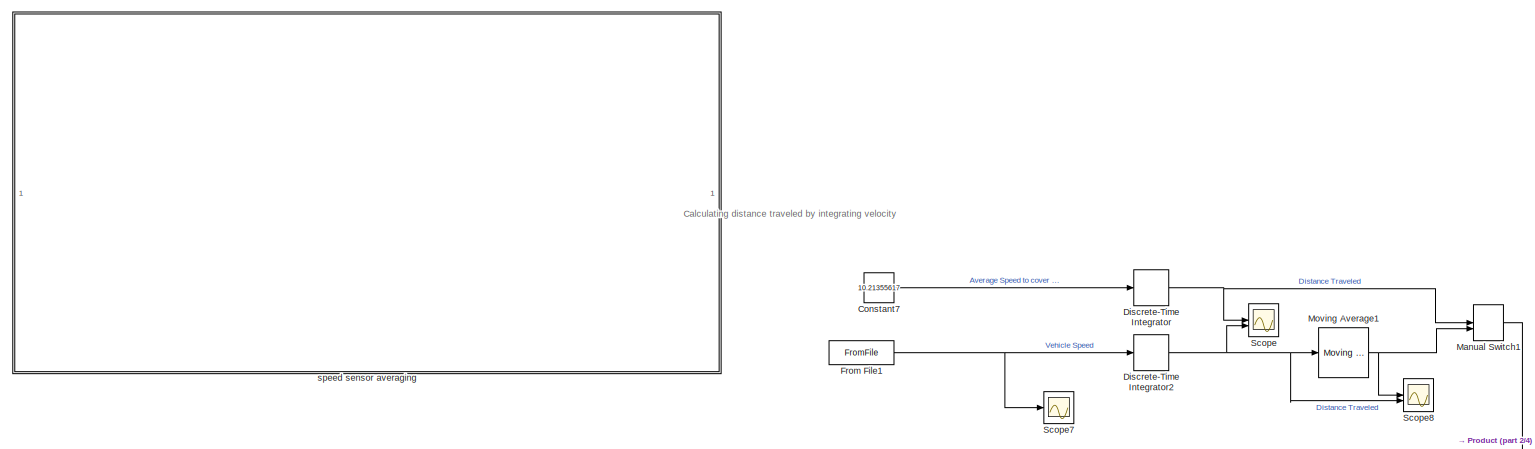
[diagram: root canvas - part 1/4, top center region]
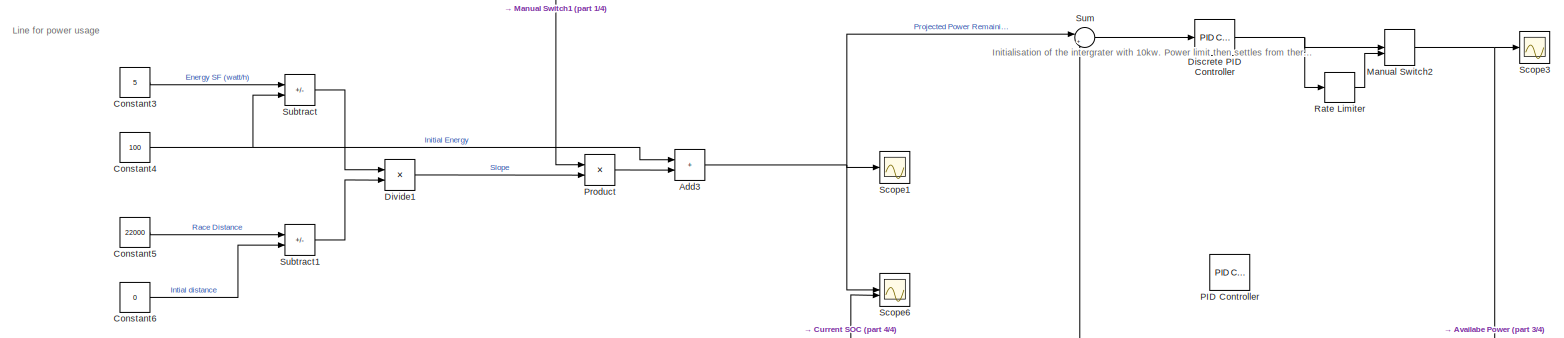
[diagram: root canvas - part 2/4, middle right region]
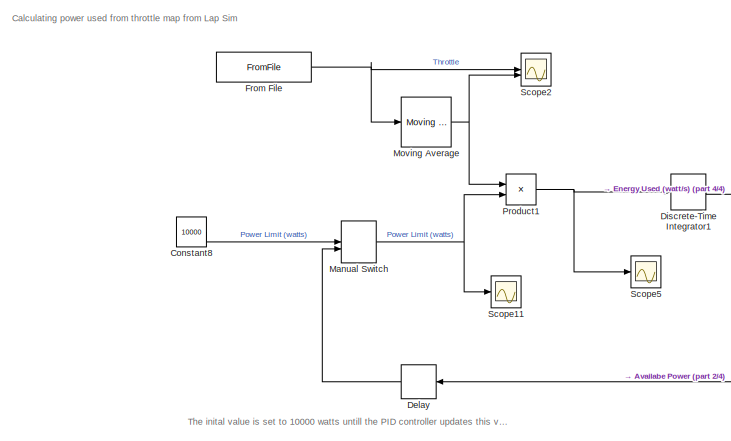
[diagram: root canvas - part 3/4, bottom left region]
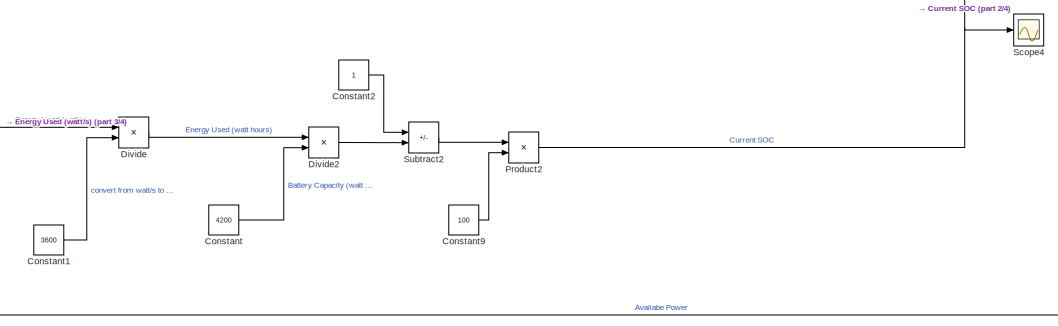
[diagram: root canvas - part 4/4, bottom center region]
MODEL slx_b58f4a45e1f0
KIND model
CONFIG AbsTol = auto
CONFIG EnableMultiTasking = off
CONFIG FixedStep = auto
CONFIG MaxStep = auto
CONFIG MinStep = auto
CONFIG RelTol = 1e-3
CONFIG SampleTimeConstraint = Unconstrained
CONFIG SolverName = VariableStepAuto
CONFIG StartTime = 0.0
CONFIG StopTime = 2154
BLOCK [Sum] Add3
  IconShape = rectangular
BLOCK [Constant] Constant
  Value = 4200
BLOCK [Constant] Constant1
  Value = 3600
BLOCK [Constant] Constant2
BLOCK [Constant] Constant3
  Value = 5
BLOCK [Constant] Constant4
  Value = 100
BLOCK [Constant] Constant5
  Value = 22000
BLOCK [Constant] Constant6
  Value = 0
BLOCK [Constant] Constant7
  Value = 10.21355617
BLOCK [Constant] Constant8
  Value = 10000
BLOCK [Constant] Constant9
  Value = 100
BLOCK [Delay] Delay
  DelayLength = 1
  InitialCondition = 10000
  InputPortMap = u0
BLOCK [Reference] Discrete PID Controller  REF=slpidlib/PID Controller
  LibrarySourceBlock = simulink/Discrete/Discrete PID Controller
  SourceBlock = slpidlib/PID Controller
  SourceType = PID 1dof
BLOCK [DiscreteIntegrator] Discrete-Time Integrator
  ICPrevOutput = DiscIntNeverNeededParam
  ICPrevScaledInput = DiscIntNeverNeededParam
  InitialConditionSetting = Auto
  SampleTime = 0.01
BLOCK [DiscreteIntegrator] Discrete-Time Integrator1
  ICPrevOutput = DiscIntNeverNeededParam
  ICPrevScaledInput = DiscIntNeverNeededParam
  InitialConditionSetting = Auto
  SampleTime = 0.01
BLOCK [DiscreteIntegrator] Discrete-Time Integrator2
  ICPrevOutput = DiscIntNeverNeededParam
  ICPrevScaledInput = DiscIntNeverNeededParam
  InitialConditionSetting = Auto
  SampleTime = 0.01
BLOCK [Product] Divide
  Inputs = */
BLOCK [Product] Divide1
  Inputs = */
BLOCK [Product] Divide2
  Inputs = */
BLOCK [FromFile] From File
  FileName = endurancedata.mat
  SampleTime = 0.01
BLOCK [FromFile] From File1
  FileName = simspeed.mat
  SampleTime = 0.01
BLOCK [ManualSwitch] Manual Switch
  CurrentSetting = 0
BLOCK [ManualSwitch] Manual Switch1
  CurrentSetting = 0
BLOCK [ManualSwitch] Manual Switch2
BLOCK [Reference] Moving Average  REF=dspstat3/Moving
Average
  SourceBlock = dspstat3/Moving\nAverage
  SourceType = dsp.simulink.MovingAverage
BLOCK [Reference] Moving Average1  REF=dspstat3/Moving
Average
  SourceBlock = dspstat3/Moving\nAverage
  SourceType = dsp.simulink.MovingAverage
BLOCK [Reference] PID Controller  REF=slpidlib/PID Controller
  LibrarySourceBlock = simulink/Continuous/PID Controller
  SourceBlock = slpidlib/PID Controller
  SourceType = PID 1dof
BLOCK [Product] Product
BLOCK [Product] Product1
BLOCK [Product] Product2
BLOCK [RateLimiter] Rate Limiter
  FallingSlewLimit = -10
  RisingSlewLimit = 10
  SampleTimeMode = inherited
BLOCK [Scope] Scope
  Floating = off
  NumInputPorts = 2
  ScopeSpecificationString = Simulink.scopes.TimeScopeBlockCfg('CurrentConfiguration', extmgr.ConfigurationSet(extmgr.Configuration('Core','General UI',true),extmgr.Configuration('Core','Source UI',true),extmgr.Configuration('Sources','WiredSimulink',true),extmgr.Configuration('Visuals','Time Domain',true,'SerializedDisplays',{struct('MinYLimReal','-2750.00000','MaxYLimReal','24749.99999','YLabelReal','','MinYLimMag','  0.000...<+2063ch>
BLOCK [Scope] Scope1
  Floating = off
  NumInputPorts = 1
  ScopeSpecificationString = Simulink.scopes.TimeScopeBlockCfg('CurrentConfiguration', extmgr.ConfigurationSet(extmgr.Configuration('Core','General UI',true),extmgr.Configuration('Core','Source UI',true),extmgr.Configuration('Sources','WiredSimulink',true,'DataLoggingVariableName','ScopeData1'),extmgr.Configuration('Visuals','Time Domain',true,'SerializedDisplays',{struct('MinYLimReal','-6.6807','MaxYLimReal','111.85341','YLa...<+1504ch>
BLOCK [Scope] Scope11
  Floating = off
  NumInputPorts = 1
  ScopeSpecificationString = Simulink.scopes.TimeScopeBlockCfg('CurrentConfiguration', extmgr.ConfigurationSet(extmgr.Configuration('Core','General UI',true),extmgr.Configuration('Core','Source UI',true),extmgr.Configuration('Sources','WiredSimulink',true,'DataLoggingVariableName','ScopeData1'),extmgr.Configuration('Visuals','Time Domain',true,'SerializedDisplays',{struct('MinYLimReal','-1373.6153','MaxYLimReal','12359.40527'...<+1535ch>
BLOCK [Scope] Scope2
  Floating = off
  NumInputPorts = 2
  ScopeSpecificationString = Simulink.scopes.TimeScopeBlockCfg('CurrentConfiguration', extmgr.ConfigurationSet(extmgr.Configuration('Core','General UI',true),extmgr.Configuration('Core','Source UI',true),extmgr.Configuration('Sources','WiredSimulink',true,'DataLoggingVariableName','ScopeData2'),extmgr.Configuration('Visuals','Time Domain',true,'SerializedDisplays',{struct('MinYLimReal','0.99117','MaxYLimReal','1.00417','YLabe...<+1515ch>
BLOCK [Scope] Scope3
  Floating = off
  NumInputPorts = 1
  ScopeSpecificationString = Simulink.scopes.TimeScopeBlockCfg('CurrentConfiguration', extmgr.ConfigurationSet(extmgr.Configuration('Core','General UI',true),extmgr.Configuration('Core','Source UI',true),extmgr.Configuration('Sources','WiredSimulink',true,'DataLoggingVariableName','ScopeData3'),extmgr.Configuration('Visuals','Time Domain',true,'SerializedDisplays',{struct('MinYLimReal','9398.53665','MaxYLimReal','10180.70743'...<+1511ch>
BLOCK [Scope] Scope4
  Floating = off
  NumInputPorts = 1
  ScopeSpecificationString = Simulink.scopes.TimeScopeBlockCfg('CurrentConfiguration', extmgr.ConfigurationSet(extmgr.Configuration('Core','General UI',true),extmgr.Configuration('Core','Source UI',true),extmgr.Configuration('Sources','WiredSimulink',true,'DataLoggingVariableName','ScopeData4'),extmgr.Configuration('Visuals','Time Domain',true,'SerializedDisplays',{struct('MinYLimReal','-8.33149','MaxYLimReal','112.03683','YL...<+1467ch>
BLOCK [Scope] Scope5
  Floating = off
  NumInputPorts = 1
  ScopeSpecificationString = Simulink.scopes.TimeScopeBlockCfg('CurrentConfiguration', extmgr.ConfigurationSet(extmgr.Configuration('Core','General UI',true),extmgr.Configuration('Core','Source UI',true),extmgr.Configuration('Sources','WiredSimulink',true,'DataLoggingVariableName','ScopeData5'),extmgr.Configuration('Visuals','Time Domain',true,'SerializedDisplays',{struct('MinYLimReal','7999.98222','MaxYLimReal','8000.01146',...<+1497ch>
BLOCK [Scope] Scope6
  Floating = off
  NumInputPorts = 2
  ScopeSpecificationString = Simulink.scopes.TimeScopeBlockCfg('CurrentConfiguration', extmgr.ConfigurationSet(extmgr.Configuration('Core','General UI',true),extmgr.Configuration('Core','Source UI',true),extmgr.Configuration('Sources','WiredSimulink',true,'DataLoggingVariableName','ScopeData6'),extmgr.Configuration('Visuals','Time Domain',true,'SerializedDisplays',{struct('MinYLimReal','-12.05319','MaxYLimReal','112.45035','Y...<+1539ch>
BLOCK [Scope] Scope7
  Floating = off
  NumInputPorts = 1
  ScopeSpecificationString = Simulink.scopes.TimeScopeBlockCfg('CurrentConfiguration', extmgr.ConfigurationSet(extmgr.Configuration('Core','General UI',true),extmgr.Configuration('Core','Source UI',true),extmgr.Configuration('Sources','WiredSimulink',true,'DataLoggingVariableName','ScopeData1'),extmgr.Configuration('Visuals','Time Domain',true,'SerializedDisplays',{struct('MinYLimReal','-0.76263','MaxYLimReal','28.39208','YLa...<+1465ch>
BLOCK [Scope] Scope8
  Floating = off
  NumInputPorts = 2
  ScopeSpecificationString = Simulink.scopes.TimeScopeBlockCfg('CurrentConfiguration', extmgr.ConfigurationSet(extmgr.Configuration('Core','General UI',true),extmgr.Configuration('Core','Source UI',true),extmgr.Configuration('Sources','WiredSimulink',true,'DataLoggingVariableName','ScopeData1'),extmgr.Configuration('Visuals','Time Domain',true,'SerializedDisplays',{struct('MinYLimReal','-2749.93368','MaxYLimReal','24749.40311...<+1553ch>
BLOCK [Sum] Subtract
  IconShape = rectangular
  Inputs = +-
BLOCK [Sum] Subtract1
  IconShape = rectangular
  Inputs = +-
BLOCK [Sum] Subtract2
  IconShape = rectangular
  Inputs = +-
BLOCK [Sum] Sum
  Inputs = |+-
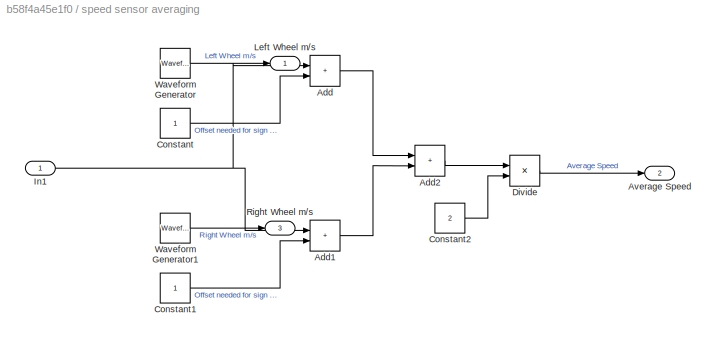
BLOCK [SubSystem] speed sensor averaging
  Commented = on
BLOCK [Sum] speed sensor averaging/Add
  IconShape = rectangular
BLOCK [Sum] speed sensor averaging/Add1
  IconShape = rectangular
BLOCK [Sum] speed sensor averaging/Add2
  IconShape = rectangular
BLOCK [Outport] speed sensor averaging/Average Speed
  Port = 2
BLOCK [Constant] speed sensor averaging/Constant
BLOCK [Constant] speed sensor averaging/Constant1
BLOCK [Constant] speed sensor averaging/Constant2
  Value = 2
BLOCK [Product] speed sensor averaging/Divide
  Inputs = */
BLOCK [Inport] speed sensor averaging/In1
BLOCK [Outport] speed sensor averaging/Left Wheel m//s
BLOCK [Outport] speed sensor averaging/Right Wheel m//s
  Port = 3
BLOCK [Reference] speed sensor averaging/Waveform Generator  REF=simulink/Sources/Waveform
Generator
  SourceBlock = simulink/Sources/Waveform\nGenerator
  SourceType = WaveformGenerator
BLOCK [Reference] speed sensor averaging/Waveform Generator1  REF=simulink/Sources/Waveform
Generator
  SourceBlock = simulink/Sources/Waveform\nGenerator
  SourceType = WaveformGenerator
ANNOTATION (root): Calculating distance traveled by integrating velocity
ANNOTATION (root): Calculating power used from throttle map from Lap Sim
ANNOTATION (root): Initialisation of the intergrater with 10kw. Power limit then settles from there.
ANNOTATION (root): Line for power usage
ANNOTATION (root): The inital value is set to 10000 watts untill the PID controller updates this value
NET Add3:1 -> Scope1:1, Scope6:1, Sum:1
LINE Constant1:1 -> Divide:2
LINE Constant2:1 -> Subtract2:1
LINE Constant3:1 -> Subtract:1
NET Constant4:1 -> Add3:1, Subtract:2
LINE Constant5:1 -> Subtract1:1
LINE Constant6:1 -> Subtract1:2
LINE Constant7:1 -> Discrete-Time Integrator:1
LINE Constant8:1 -> Manual Switch:1
LINE Constant9:1 -> Product2:2
LINE Constant:1 -> Divide2:2
LINE Delay:1 -> Manual Switch:2
NET Discrete PID Controller:1 -> Manual Switch2:1, Rate Limiter:1
LINE Discrete-Time Integrator1:1 -> Divide:1
NET Discrete-Time Integrator2:1 -> Moving Average1:1, Scope8:2, Scope:2
NET Discrete-Time Integrator:1 -> Manual Switch1:1, Scope:1
LINE Divide1:1 -> Product:2
LINE Divide2:1 -> Subtract2:2
LINE Divide:1 -> Divide2:1
NET From File1:1 -> Discrete-Time Integrator2:1, Scope7:1
NET From File:1 -> Moving Average:1, Scope2:1
LINE Manual Switch1:1 -> Product:1
NET Manual Switch2:1 -> Delay:1, Scope3:1
NET Manual Switch:1 -> Product1:2, Scope11:1
NET Moving Average1:1 -> Manual Switch1:2, Scope8:1
NET Moving Average:1 -> Product1:1, Scope2:2
NET Product1:1 -> Discrete-Time Integrator1:1, Scope5:1
NET Product2:1 -> Scope4:1, Scope6:2, Sum:2
LINE Product:1 -> Add3:2
LINE Rate Limiter:1 -> Manual Switch2:2
LINE Subtract1:1 -> Divide1:2
LINE Subtract2:1 -> Product2:1
LINE Subtract:1 -> Divide1:1
LINE Sum:1 -> Discrete PID Controller:1
LINE speed sensor averaging/Add1:1 -> speed sensor averaging/Add2:2
LINE speed sensor averaging/Add2:1 -> speed sensor averaging/Divide:1
LINE speed sensor averaging/Add:1 -> speed sensor averaging/Add2:1
LINE speed sensor averaging/Constant1:1 -> speed sensor averaging/Add1:2
LINE speed sensor averaging/Constant2:1 -> speed sensor averaging/Divide:2
LINE speed sensor averaging/Constant:1 -> speed sensor averaging/Add:2
LINE speed sensor averaging/Divide:1 -> speed sensor averaging/Average Speed:1
NET speed sensor averaging/In1:1 -> speed sensor averaging/Add1:1, speed sensor averaging/Add:1
LINE speed sensor averaging/Waveform Generator1:1 -> speed sensor averaging/Right Wheel m//s:1
LINE speed sensor averaging/Waveform Generator:1 -> speed sensor averaging/Left Wheel m//s:1
note: NET lines group one-source signal fan-out (src -> all destinations, sorted); 1:1 wires keep LINE
